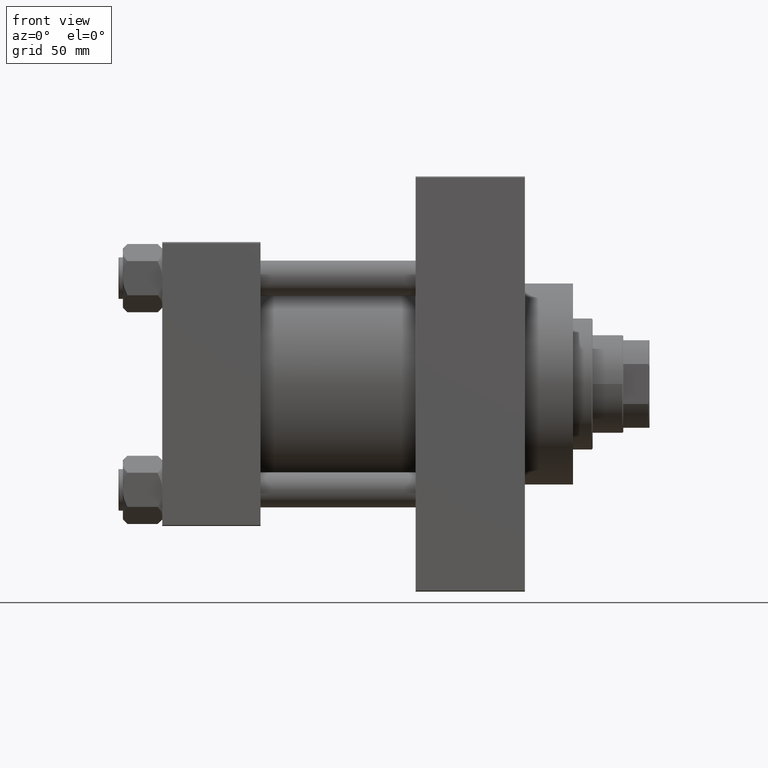
[diagram: clean part render]
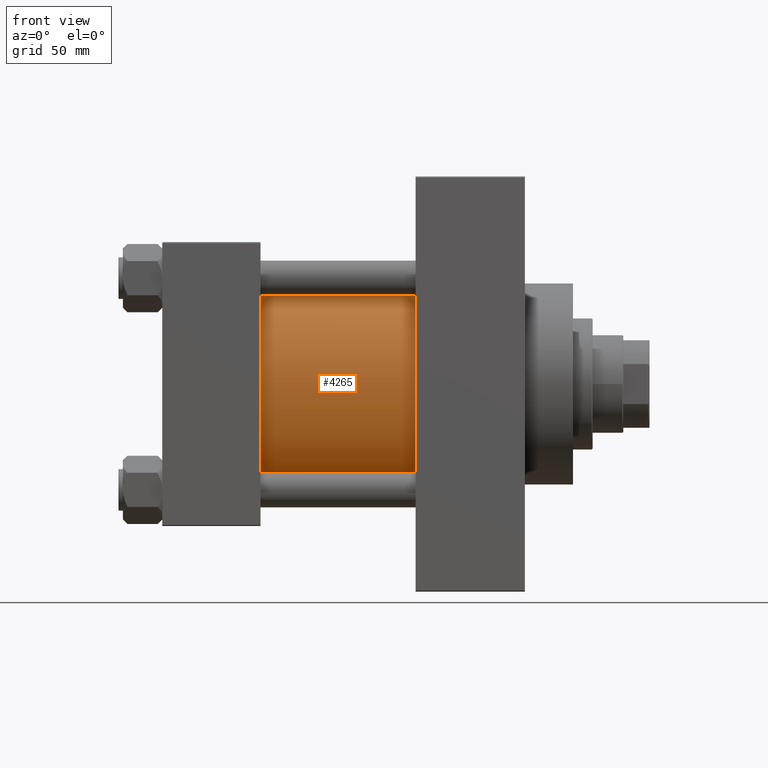
[diagram: same view with one face highlighted and labeled with its STEP entity id]
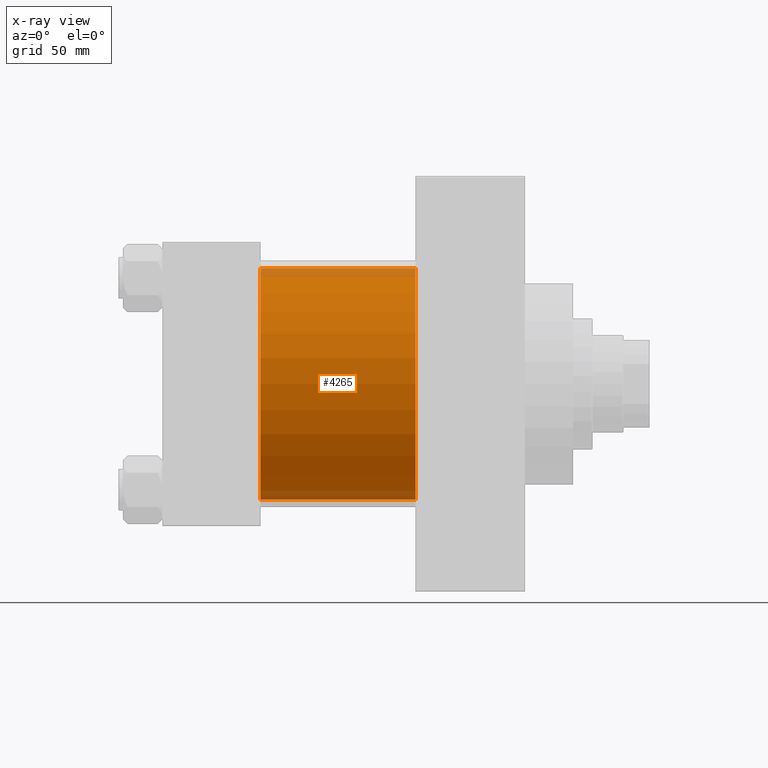
[diagram: x-ray of the same camera — body ghosted, the highlighted face saturated]
A machine part, front view. The second image highlights one B-rep face of the part: STEP entity #4265.
The next image is the same camera in x-ray: the body ghosted, the highlighted face saturated — about 8% of this face is hidden behind the body in this view.
In plain terms, the highlighted cylindrical surface (partial cylindrical patch) has radius 53 mm, axis along (-1, -0, -0).
Its self-contained STEP definition (entity closure, byte-faithful):
#4265 = ADVANCED_FACE ( 'NONE', ( #10354 ), #21216, .T. ) ;
#4384 = ORIENTED_EDGE ( 'NONE', *, *, #8898, .F. ) ;
#4458 = VECTOR ( 'NONE', #27962, 1000.000000000000000 ) ;
#4531 = EDGE_CURVE ( 'NONE', #16812, #39774, #19746, .T. ) ;
#4789 = DIRECTION ( 'NONE',  ( -1.000000000000000000, -0.000000000000000000, -0.000000000000000000 ) ) ;
#8789 = DIRECTION ( 'NONE',  ( 0.000000000000000000, 0.000000000000000000, 1.000000000000000000 ) ) ;
#8898 = EDGE_CURVE ( 'NONE', #39774, #28839, #9890, .T. ) ;
#9890 = LINE ( 'NONE', #13275, #4458 ) ;
#10354 = FACE_OUTER_BOUND ( 'NONE', #42559, .T. ) ;
#10692 = CIRCLE ( 'NONE', #14562, 53.00000000000000711 ) ;
#13275 = CARTESIAN_POINT ( 'NONE',  ( 115.9999999999999858, 3.888542821515762466E-15, -53.00000000000000711 ) ) ;
#13739 = DIRECTION ( 'NONE',  ( 0.000000000000000000, 0.000000000000000000, 1.000000000000000000 ) ) ;
#13819 = VECTOR ( 'NONE', #4789, 1000.000000000000000 ) ;
#14222 = CARTESIAN_POINT ( 'NONE',  ( 115.9999999999999858, -2.602085213965210642E-15, 0.000000000000000000 ) ) ;
#14562 = AXIS2_PLACEMENT_3D ( 'NONE', #40886, #44963, #8789 ) ;
#14820 = DIRECTION ( 'NONE',  ( 1.000000000000000000, 0.000000000000000000, 0.000000000000000000 ) ) ;
#16137 = EDGE_CURVE ( 'NONE', #16812, #42243, #19032, .T. ) ;
#16493 = CARTESIAN_POINT ( 'NONE',  ( 115.9999999999999858, -2.602085213965210642E-15, 53.00000000000000711 ) ) ;
#16812 = VERTEX_POINT ( 'NONE', #16493 ) ;
#19032 = LINE ( 'NONE', #22640, #13819 ) ;
#19746 = CIRCLE ( 'NONE', #37431, 53.00000000000000711 ) ;
#21185 = CARTESIAN_POINT ( 'NONE',  ( 45.00000000000000000, -2.602085213965210642E-15, 53.00000000000000711 ) ) ;
#21216 = CYLINDRICAL_SURFACE ( 'NONE', #47453, 53.00000000000000711 ) ;
#21454 = DIRECTION ( 'NONE',  ( -1.000000000000000000, -0.000000000000000000, -0.000000000000000000 ) ) ;
#22640 = CARTESIAN_POINT ( 'NONE',  ( 115.9999999999999858, -2.602085213965210642E-15, 53.00000000000000711 ) ) ;
#24707 = ORIENTED_EDGE ( 'NONE', *, *, #4531, .F. ) ;
#27962 = DIRECTION ( 'NONE',  ( -1.000000000000000000, -0.000000000000000000, -0.000000000000000000 ) ) ;
#28839 = VERTEX_POINT ( 'NONE', #45110 ) ;
#29022 = CARTESIAN_POINT ( 'NONE',  ( 115.9999999999999858, -2.602085213965210642E-15, 0.000000000000000000 ) ) ;
#36042 = DIRECTION ( 'NONE',  ( 0.000000000000000000, 0.000000000000000000, -1.000000000000000000 ) ) ;
#37431 = AXIS2_PLACEMENT_3D ( 'NONE', #29022, #14820, #36042 ) ;
#39774 = VERTEX_POINT ( 'NONE', #43654 ) ;
#40886 = CARTESIAN_POINT ( 'NONE',  ( 45.00000000000000000, -2.602085213965210642E-15, 0.000000000000000000 ) ) ;
#42243 = VERTEX_POINT ( 'NONE', #21185 ) ;
#42559 = EDGE_LOOP ( 'NONE', ( #4384, #24707, #43035, #44117 ) ) ;
#43035 = ORIENTED_EDGE ( 'NONE', *, *, #16137, .T. ) ;
#43654 = CARTESIAN_POINT ( 'NONE',  ( 115.9999999999999858, 3.888542821515762466E-15, -53.00000000000000711 ) ) ;
#44117 = ORIENTED_EDGE ( 'NONE', *, *, #46531, .T. ) ;
#44963 = DIRECTION ( 'NONE',  ( 1.000000000000000000, -0.000000000000000000, 0.000000000000000000 ) ) ;
#45110 = CARTESIAN_POINT ( 'NONE',  ( 45.00000000000000000, 3.888542821515762466E-15, -53.00000000000000711 ) ) ;
#46531 = EDGE_CURVE ( 'NONE', #42243, #28839, #10692, .T. ) ;
#47453 = AXIS2_PLACEMENT_3D ( 'NONE', #14222, #21454, #13739 ) ;